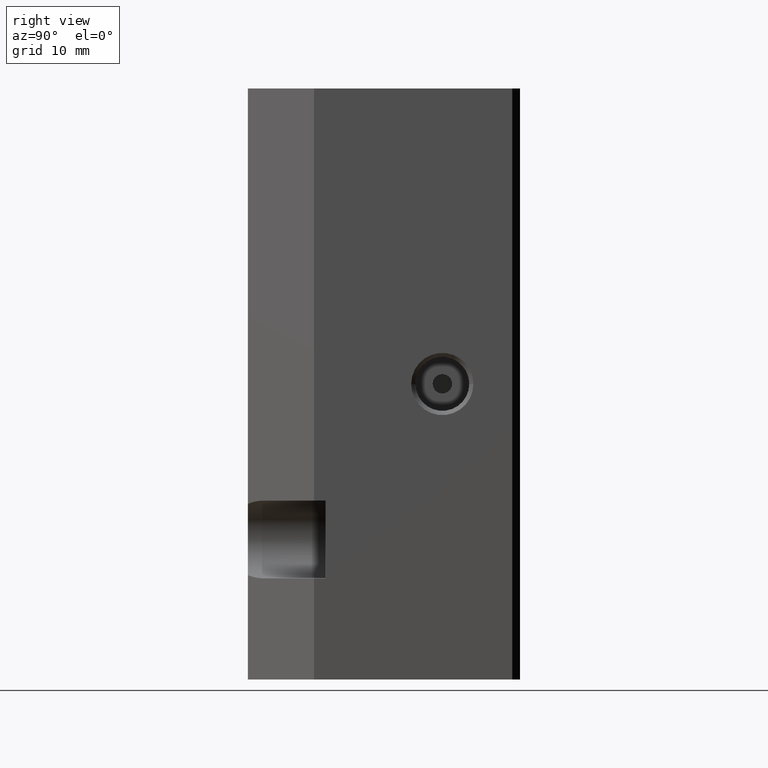
[diagram: clean part render]
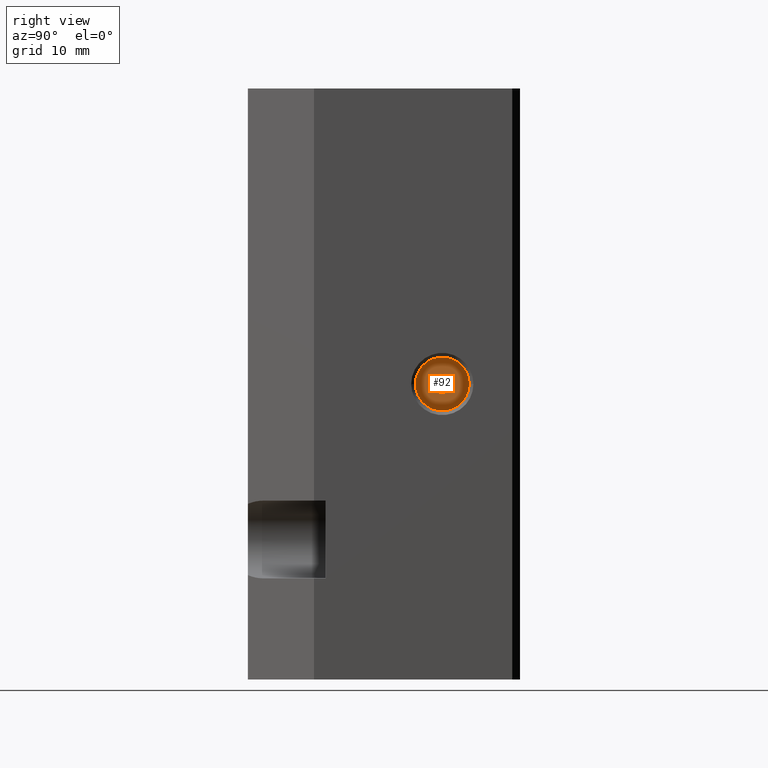
[diagram: same view with one face highlighted and labeled with its STEP entity id]
A machine part, right view. The second image highlights one B-rep face of the part: STEP entity #92.
In plain terms, the highlighted planar face has unit normal (-1, -0, 0).
Its self-contained STEP definition (entity closure, byte-faithful):
#92 = ADVANCED_FACE( '', ( #173, #174 ), #175, .F. );
#173 = FACE_OUTER_BOUND( '', #316, .T. );
#174 = FACE_BOUND( '', #317, .T. );
#175 = PLANE( '', #318 );
#316 = EDGE_LOOP( '', ( #544, #545 ) );
#317 = EDGE_LOOP( '', ( #546, #547 ) );
#318 = AXIS2_PLACEMENT_3D( '', #548, #549, #550 );
#544 = ORIENTED_EDGE( '', *, *, #970, .T. );
#545 = ORIENTED_EDGE( '', *, *, #977, .T. );
#546 = ORIENTED_EDGE( '', *, *, #972, .F. );
#547 = ORIENTED_EDGE( '', *, *, #976, .F. );
#548 = CARTESIAN_POINT( '', ( 11.0000000000000, 22.6456350000000, 38.0000000000000 ) );
#549 = DIRECTION( '', ( -1.00000000000000, -8.04243542397781E-016, 0.000000000000000 ) );
#550 = DIRECTION( '', ( -8.04243542397781E-016, 1.00000000000000, 2.44921270764475E-016 ) );
#970 = EDGE_CURVE( '', #1170, #1172, #1174, .T. );
#972 = EDGE_CURVE( '', #1175, #1178, #1179, .T. );
#976 = EDGE_CURVE( '', #1178, #1175, #1184, .T. );
#977 = EDGE_CURVE( '', #1172, #1170, #1185, .T. );
#1170 = VERTEX_POINT( '', #1446 );
#1172 = VERTEX_POINT( '', #1449 );
#1174 = CIRCLE( '', #1452, 3.45873000000000 );
#1175 = VERTEX_POINT( '', #1453 );
#1178 = VERTEX_POINT( '', #1457 );
#1179 = CIRCLE( '', #1458, 1.25000000000000 );
#1184 = CIRCLE( '', #1506, 1.25000000000000 );
#1185 = CIRCLE( '', #1507, 3.45873000000000 );
#1446 = CARTESIAN_POINT( '', ( 11.0000000000000, 21.5412700000000, 38.0000000000000 ) );
#1449 = CARTESIAN_POINT( '', ( 11.0000000000000, 28.4587300000000, 38.0000000000000 ) );
#1452 = AXIS2_PLACEMENT_3D( '', #1794, #1795, #1796 );
#1453 = CARTESIAN_POINT( '', ( 11.0000000000000, 23.7500000000000, 38.0000000000000 ) );
#1457 = CARTESIAN_POINT( '', ( 11.0000000000000, 26.2500000000000, 38.0000000000000 ) );
#1458 = AXIS2_PLACEMENT_3D( '', #1798, #1799, #1800 );
#1506 = AXIS2_PLACEMENT_3D( '', #1802, #1803, #1804 );
#1507 = AXIS2_PLACEMENT_3D( '', #1805, #1806, #1807 );
#1794 = CARTESIAN_POINT( '', ( 11.0000000000000, 25.0000000000000, 38.0000000000000 ) );
#1795 = DIRECTION( '', ( 1.00000000000000, 0.000000000000000, 0.000000000000000 ) );
#1796 = DIRECTION( '', ( 0.000000000000000, -1.00000000000000, 0.000000000000000 ) );
#1798 = CARTESIAN_POINT( '', ( 11.0000000000000, 25.0000000000000, 38.0000000000000 ) );
#1799 = DIRECTION( '', ( 1.00000000000000, 0.000000000000000, 0.000000000000000 ) );
#1800 = DIRECTION( '', ( 0.000000000000000, -1.00000000000000, 0.000000000000000 ) );
#1802 = CARTESIAN_POINT( '', ( 11.0000000000000, 25.0000000000000, 38.0000000000000 ) );
#1803 = DIRECTION( '', ( 1.00000000000000, 0.000000000000000, 0.000000000000000 ) );
#1804 = DIRECTION( '', ( 0.000000000000000, -1.00000000000000, 0.000000000000000 ) );
#1805 = CARTESIAN_POINT( '', ( 11.0000000000000, 25.0000000000000, 38.0000000000000 ) );
#1806 = DIRECTION( '', ( 1.00000000000000, 0.000000000000000, 0.000000000000000 ) );
#1807 = DIRECTION( '', ( 0.000000000000000, -1.00000000000000, 0.000000000000000 ) );